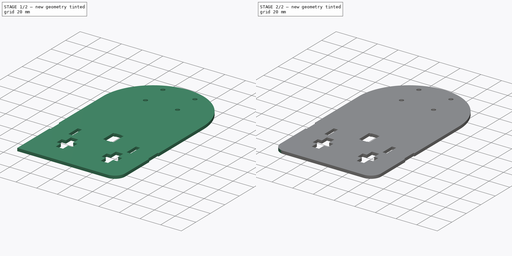
[diagram: build sequence overview — one tinted view per stage of 2, left to right]
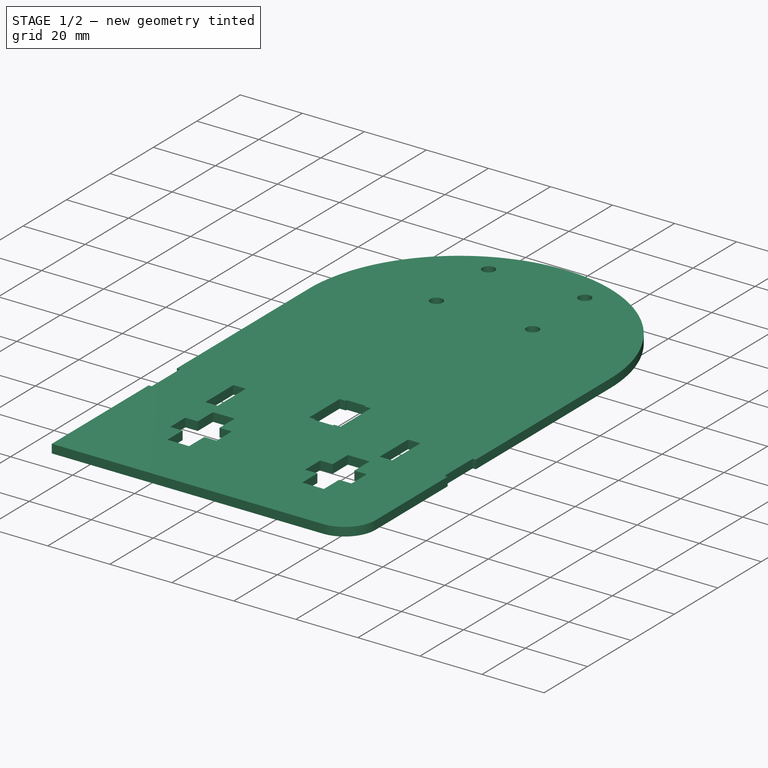
[diagram: stage 1 of 2 — iso view after this stage's code; geometry added in this stage tinted green]
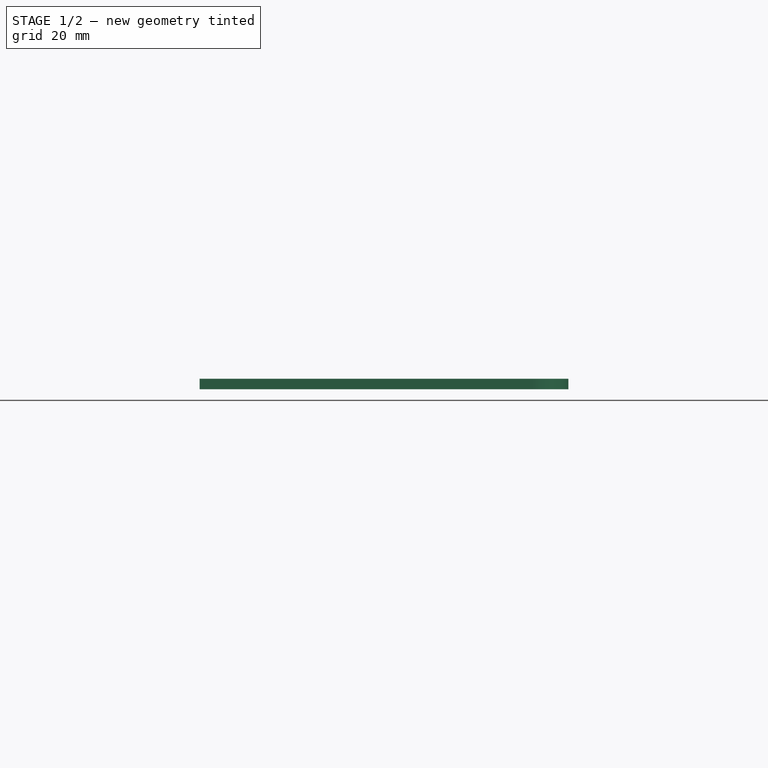
[diagram: stage 1 of 2 — front view after this stage's code; geometry added in this stage tinted green]
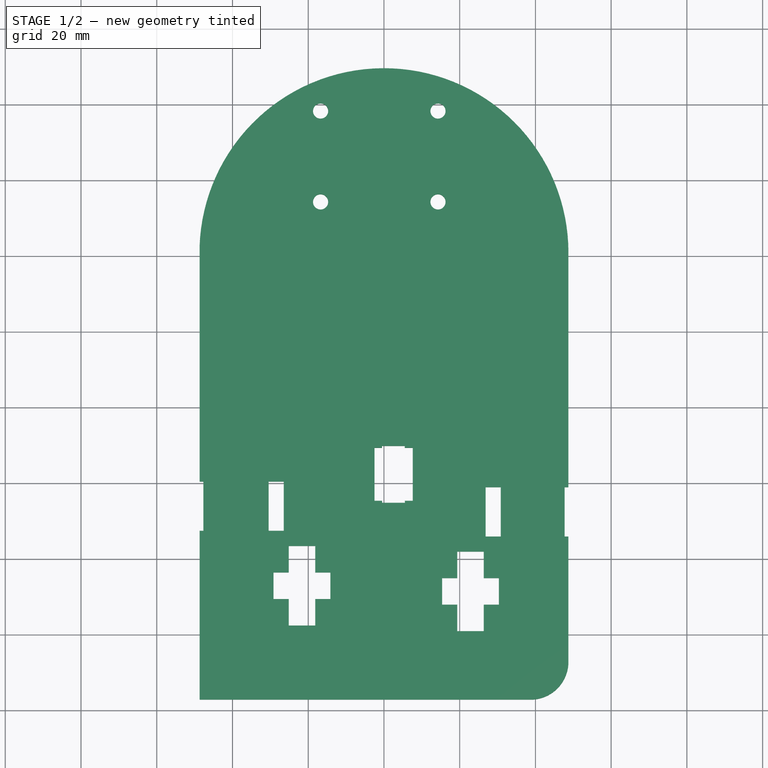
[diagram: stage 1 of 2 — top view after this stage's code; geometry added in this stage tinted green]
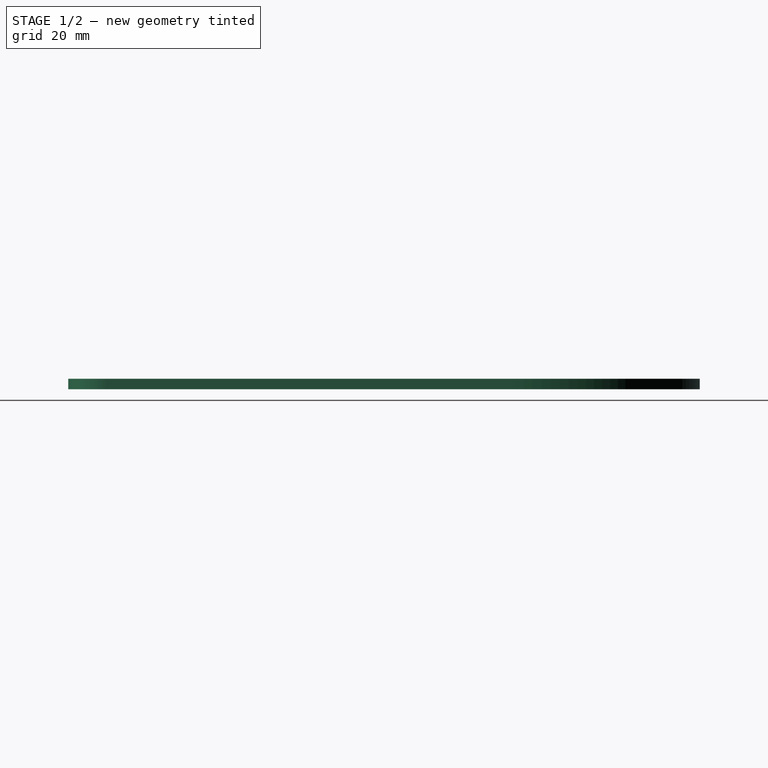
[diagram: stage 1 of 2 — right view after this stage's code; geometry added in this stage tinted green]
FCSTD DOCUMENT  (FreeCAD 0.16R6704 (Git))
Label: placa robot evita
License: All rights reserved
LicenseURL: http://en.wikipedia.org/wiki/All_rights_reserved
objects: Part::Fillet×2, Sketcher::SketchObject×1, PartDesign::Pad×1
note: 5 computed .brp shape members not serialized (recipe doc carries the construction recipe); baked Part::Feature solids carry a one-line shape summary decoded from their .brp

FEATURE [Sketcher::SketchObject] Sketch001
  sketch-geometry (65):
    g0: GeomPoint [constr] X=2.73482e-06 Y=-64.9838 Z=0
    g1: GeomPoint [constr] X=0.000781089 Y=-94.5802 Z=0
    g2: GeomPoint [constr] X=5.17953e-06 Y=-94.5802 Z=0
    g3: LineSegment StartX=48.7183 StartY=-1.05236 StartZ=0 EndX=47.7183 EndY=-1.05236 EndZ=0
    g4: LineSegment StartX=47.7183 StartY=-1.05236 StartZ=0 EndX=47.7183 EndY=-14.0524 EndZ=0
    g5: LineSegment StartX=47.7183 StartY=-14.0524 StartZ=0 EndX=48.7184 EndY=-14.0524 EndZ=0
    g6: LineSegment StartX=48.7184 StartY=-14.0524 StartZ=0 EndX=48.7184 EndY=-57.1495 EndZ=0
    g7: LineSegment StartX=-48.6938 StartY=-12.5628 StartZ=0 EndX=-47.6938 EndY=-12.5628 EndZ=0
    g8: LineSegment StartX=-48.6938 StartY=0.437237 StartZ=0 EndX=-47.6938 EndY=0.437237 EndZ=0
    g9: LineSegment StartX=-47.6938 StartY=0.437237 StartZ=0 EndX=-47.6938 EndY=-12.5628 EndZ=0
    g10: LineSegment StartX=-48.6938 StartY=-57.1495 StartZ=0 EndX=-48.6938 EndY=-12.5628 EndZ=0
    g11: LineSegment StartX=30.8602 StartY=-1.05236 StartZ=0 EndX=26.8602 EndY=-1.05236 EndZ=0
    g12: LineSegment StartX=30.8602 StartY=-1.05236 StartZ=0 EndX=30.8602 EndY=-14.0524 EndZ=0
    g13: LineSegment StartX=26.8602 StartY=-1.05236 StartZ=0 EndX=26.8602 EndY=-14.0524 EndZ=0
    g14: LineSegment StartX=26.8602 StartY=-14.0524 StartZ=0 EndX=30.8602 EndY=-14.0524 EndZ=0
    g15: LineSegment StartX=-30.4541 StartY=0.437237 StartZ=0 EndX=-26.4541 EndY=0.437237 EndZ=0
    g16: LineSegment StartX=-30.4541 StartY=0.437237 StartZ=0 EndX=-30.4541 EndY=-12.5628 EndZ=0
    g17: LineSegment StartX=-26.4541 StartY=0.437237 StartZ=0 EndX=-26.4541 EndY=-12.5628 EndZ=0
    g18: LineSegment StartX=-30.4541 StartY=-12.5628 StartZ=0 EndX=-26.4541 EndY=-12.5628 EndZ=0
    g19: LineSegment StartX=7.59332 StartY=9.36164 StartZ=0 EndX=7.59332 EndY=-4.63836 EndZ=0
    g20: LineSegment StartX=-2.48093 StartY=9.36164 StartZ=0 EndX=-2.48093 EndY=-4.63836 EndZ=0
    g21: LineSegment StartX=-0.515563 StartY=9.86164 StartZ=0 EndX=-0.515563 EndY=9.36164 EndZ=0
    g22: LineSegment StartX=-0.515563 StartY=9.86164 StartZ=0 EndX=5.48444 EndY=9.86164 EndZ=0
    g23: LineSegment StartX=5.48444 StartY=9.86164 StartZ=0 EndX=5.48444 EndY=9.36164 EndZ=0
    g24: LineSegment StartX=5.48444 StartY=9.36164 StartZ=0 EndX=7.59332 EndY=9.36164 EndZ=0
    g25: LineSegment StartX=-2.48093 StartY=9.36164 StartZ=0 EndX=-0.515563 EndY=9.36164 EndZ=0
    g26: LineSegment StartX=26.3602 StartY=-18.0524 StartZ=0 EndX=19.3602 EndY=-18.0524 EndZ=0
    g27: LineSegment StartX=19.3602 StartY=-18.0524 StartZ=0 EndX=19.3602 EndY=-25.0524 EndZ=0
    g28: LineSegment StartX=19.3602 StartY=-25.0524 StartZ=0 EndX=15.3602 EndY=-25.0524 EndZ=0
    g29: LineSegment StartX=15.3602 StartY=-25.0524 StartZ=0 EndX=15.3602 EndY=-32.0524 EndZ=0
    g30: LineSegment StartX=15.3602 StartY=-32.0524 StartZ=0 EndX=19.3602 EndY=-32.0524 EndZ=0
    g31: LineSegment StartX=19.3602 StartY=-32.0524 StartZ=0 EndX=19.3602 EndY=-39.0524 EndZ=0
    g32: LineSegment StartX=19.3602 StartY=-39.0524 StartZ=0 EndX=26.3602 EndY=-39.0524 EndZ=0
    g33: LineSegment StartX=26.3602 StartY=-39.0524 StartZ=0 EndX=26.3602 EndY=-32.0524 EndZ=0
    g34: LineSegment StartX=26.3602 StartY=-32.0524 StartZ=0 EndX=30.3602 EndY=-32.0524 EndZ=0
    g35: LineSegment StartX=30.3602 StartY=-32.0524 StartZ=0 EndX=30.3602 EndY=-25.0524 EndZ=0
    g36: LineSegment StartX=30.3602 StartY=-25.0524 StartZ=0 EndX=26.3602 EndY=-25.0524 EndZ=0
    g37: LineSegment StartX=26.3602 StartY=-18.0524 StartZ=0 EndX=26.3602 EndY=-25.0524 EndZ=0
    g38: LineSegment StartX=-0.480931 StartY=-5.13836 StartZ=0 EndX=-0.480931 EndY=-4.63836 EndZ=0
    g39: LineSegment StartX=-0.480931 StartY=-5.13836 StartZ=0 EndX=5.51907 EndY=-5.13836 EndZ=0
    g40: LineSegment StartX=5.51907 StartY=-5.13836 StartZ=0 EndX=5.51907 EndY=-4.63836 EndZ=0
    g41: LineSegment StartX=-0.480931 StartY=-4.63836 StartZ=0 EndX=-2.48093 EndY=-4.63836 EndZ=0
    g42: LineSegment StartX=5.51907 StartY=-4.63836 StartZ=0 EndX=7.59332 EndY=-4.63836 EndZ=0
    g43: LineSegment StartX=-25.1533 StartY=-16.5628 StartZ=0 EndX=-25.1533 EndY=-23.5628 EndZ=0
    g44: LineSegment StartX=-25.1533 StartY=-23.5628 StartZ=0 EndX=-29.1533 EndY=-23.5628 EndZ=0
    g45: LineSegment StartX=-29.1533 StartY=-23.5628 StartZ=0 EndX=-29.1533 EndY=-30.5628 EndZ=0
    g46: LineSegment StartX=-29.1533 StartY=-30.5628 StartZ=0 EndX=-25.1533 EndY=-30.5628 EndZ=0
    g47: LineSegment StartX=-25.1533 StartY=-30.5628 StartZ=0 EndX=-25.1533 EndY=-37.5628 EndZ=0
    g48: LineSegment StartX=-25.1533 StartY=-37.5628 StartZ=0 EndX=-18.1533 EndY=-37.5628 EndZ=0
    g49: LineSegment StartX=-18.1533 StartY=-37.5628 StartZ=0 EndX=-18.1533 EndY=-30.5628 EndZ=0
    g50: LineSegment StartX=-18.1533 StartY=-30.5628 StartZ=0 EndX=-14.1533 EndY=-30.5628 EndZ=0
    g51: LineSegment StartX=-14.1533 StartY=-30.5628 StartZ=0 EndX=-14.1533 EndY=-23.5628 EndZ=0
    g52: LineSegment StartX=-14.1533 StartY=-23.5628 StartZ=0 EndX=-18.1533 EndY=-23.5628 EndZ=0
    g53: LineSegment StartX=-18.1533 StartY=-23.5628 StartZ=0 EndX=-18.1533 EndY=-16.5628 EndZ=0
    g54: LineSegment StartX=-25.1533 StartY=-16.5628 StartZ=0 EndX=-18.1533 EndY=-16.5628 EndZ=0
    g55: Circle CenterX=-16.732 CenterY=74.3101 CenterZ=0 NormalX=0 NormalY=0 NormalZ=1 Radius=2
    g56: Circle CenterX=14.268 CenterY=74.3101 CenterZ=0 NormalX=0 NormalY=0 NormalZ=1 Radius=2
    g57: Circle CenterX=-16.732 CenterY=98.3101 CenterZ=0 NormalX=0 NormalY=0 NormalZ=1 Radius=2
    g58: Circle CenterX=14.268 CenterY=98.3101 CenterZ=0 NormalX=0 NormalY=0 NormalZ=1 Radius=2
    g59: GeomPoint [constr] X=0 Y=12.0048 Z=0
    g60: GeomPoint [constr] X=0 Y=32.0116 Z=0
    g61: LineSegment StartX=-48.6938 StartY=-57.1495 StartZ=0 EndX=48.7184 EndY=-57.1495 EndZ=0
    g62: LineSegment StartX=-48.6938 StartY=0.437237 StartZ=0 EndX=-48.6938 EndY=62.4595 EndZ=0
    g63: LineSegment StartX=48.7183 StartY=-1.05236 StartZ=0 EndX=48.7183 EndY=60.7275 EndZ=0
    g64: ArcOfCircle CenterX=0 CenterY=60.9043 CenterZ=0 NormalX=0 NormalY=0 NormalZ=1 Radius=48.7187 StartAngle=6.27955 EndAngle=9.39285
  constraints (162):
    c: Distance(g5,g3) = 13
    c: Horizontal(g3)
    c: Distance(g3,g3) = 1
    c: Coincident(g4,g3)
    c: Vertical(g4)
    c: Distance(g4) = 13
    c: Coincident(g5,g4)
    c: Horizontal(g5)
    c: Coincident(g6,g5)
    c: Vertical(g6)
    c: Distance(g8,g7) = 13
    c: Horizontal(g7)
    c: Distance(g7,g7) = 1
    c: Horizontal(g8)
    c: Distance(g8,g8) = 1
    c: Coincident(g9,g8)
    c: Coincident(g9,g7)
    c: Vertical(g9)
    c: Vertical(g10)
    c: Coincident(g10,g7)
    c: Horizontal(g11)
    c: Distance(g11) = 4
    c: Vertical(g12)
    c: Coincident(g13,g11)
    c: Vertical(g13)
    c: Distance(g13) = 13
    c: Distance(g12) = 13
    c: Coincident(g14,g13)
    c: Coincident(g14,g12)
    c: Horizontal(g14)
    c: Horizontal(g15)
    c: Distance(g14) = 4
    c: Distance(g15) = 4
    c: Vertical(g16)
    c: Distance(g16) = 13
    c: Coincident(g17,g15)
    c: Vertical(g17)
    c: Distance(g17) = 13
    c: Coincident(g18,g16)
    c: Coincident(g18,g17)
    c: Horizontal(g18)
    c: Distance(g18) = 4
    c: Vertical(g19)
    c: Vertical(g20)
    c: Vertical(g21)
    c: Horizontal(g22)
    c: Distance(g22) = 6
    c: Coincident(g23,g22)
    c: Vertical(g23)
    c: Coincident(g24,g23)
    c: Coincident(g24,g19)
    c: Horizontal(g24)
    c: Coincident(g25,g20)
    c: Coincident(g25,g21)
    c: Horizontal(g25)
    c: Horizontal(g26)
    c: Distance(g26) = 7
    c: Coincident(g27,g26)
    c: Vertical(g27)
    c: Distance(g27) = 7
    c: Coincident(g28,g27)
    c: Horizontal(g28)
    c: Distance(g28) = 4
    c: Coincident(g29,g28)
    c: Vertical(g29)
    c: Distance(g29) = 7
    c: Coincident(g30,g29)
    c: Horizontal(g30)
    c: Distance(g30) = 4
    c: Coincident(g31,g30)
    c: Vertical(g31)
    c: Distance(g31) = 7
    c: Coincident(g32,g31)
    c: Horizontal(g32)
    c: Distance(g32) = 7
    c: Coincident(g33,g32)
    c: Vertical(g33)
    c: Distance(g33) = 7
    c: Coincident(g34,g33)
    c: Horizontal(g34)
    c: Distance(g34) = 4
    c: Coincident(g35,g34)
    c: Vertical(g35)
    c: Distance(g35) = 7
    c: Coincident(g36,g35)
    c: Horizontal(g36)
    c: Distance(g36) = 4
    c: Coincident(g37,g36)
    c: Vertical(g37)
    c: Vertical(g38)
    c: Horizontal(g39)
    c: Distance(g39) = 6
    c: Coincident(g40,g39)
    c: Vertical(g40)
    c: Coincident(g41,g38)
    c: Coincident(g41,g20)
    c: Horizontal(g41)
    c: Coincident(g42,g40)
    c: Coincident(g42,g19)
    c: Horizontal(g42)
    c: Vertical(g43)
    c: Distance(g43) = 7
    c: Coincident(g44,g43)
    c: Horizontal(g44)
    c: Distance(g44) = 4
    c: Coincident(g45,g44)
    c: Vertical(g45)
    c: Distance(g45) = 7
    c: Coincident(g46,g45)
    c: Horizontal(g46)
    c: Distance(g46) = 4
    c: Coincident(g47,g46)
    c: Vertical(g47)
    c: Distance(g47) = 7
    c: Coincident(g48,g47)
    c: Horizontal(g48)
    c: Distance(g48) = 7
    c: Coincident(g49,g48)
    c: Vertical(g49)
    c: Distance(g49) = 7
    c: Coincident(g50,g49)
    c: Horizontal(g50)
    c: Distance(g50) = 4
    c: Coincident(g51,g50)
    c: Vertical(g51)
    c: Distance(g51) = 7
    c: Coincident(g52,g51)
    c: Horizontal(g52)
    c: Distance(g52) = 4
    c: Coincident(g53,g52)
    c: Vertical(g53)
    c: Distance(g53) = 7
    c: Coincident(g54,g53)
    c: Horizontal(g54)
    c: Distance(g54) = 7
    c: Distance(g38) = 0.5
    c: Distance(g40) = 0.5
    c: Distance(g21) = 0.5
    c: Distance(g23) = 0.5
    c: Distance(g20) = 14
    c: Distance(g19) = 14
    c: Coincident(g21,g22)
    c: Radius(g58) = 2
    c: DistanceY(g55,g57) = 24
    c: DistanceY(g56,g58) = 24
    c: DistanceY(g8,g15) = 0
    c: DistanceY(g3,g11) = 0
    c: DistanceY(g43,g17) = 4
    c: DistanceY(g26,g13) = 4
    c: Coincident(g37,g26)
    c: PointOnObject(g59,g-2)
    c: PointOnObject(g60,g-2)
    c: Horizontal(g61)
    c: Coincident(g62,g8)
    c: Vertical(g62)
    c: Coincident(g63,g3)
    c: Vertical(g63)
    c: Coincident(g6,g61)
    c: Coincident(g61,g10)
    c: PointOnObject(g64,g-2)
    c: Coincident(g64,g62)
    c: Coincident(g64,g63)
FEATURE [PartDesign::Pad] Pad
  Length = 2.8
  Length2 = 100
  Sketch = -> Sketch001
  Type = 0
FEATURE [Part::Fillet] Fillet
  Base = -> Pad
  Edges = 1 edges r=10: [Edge11]
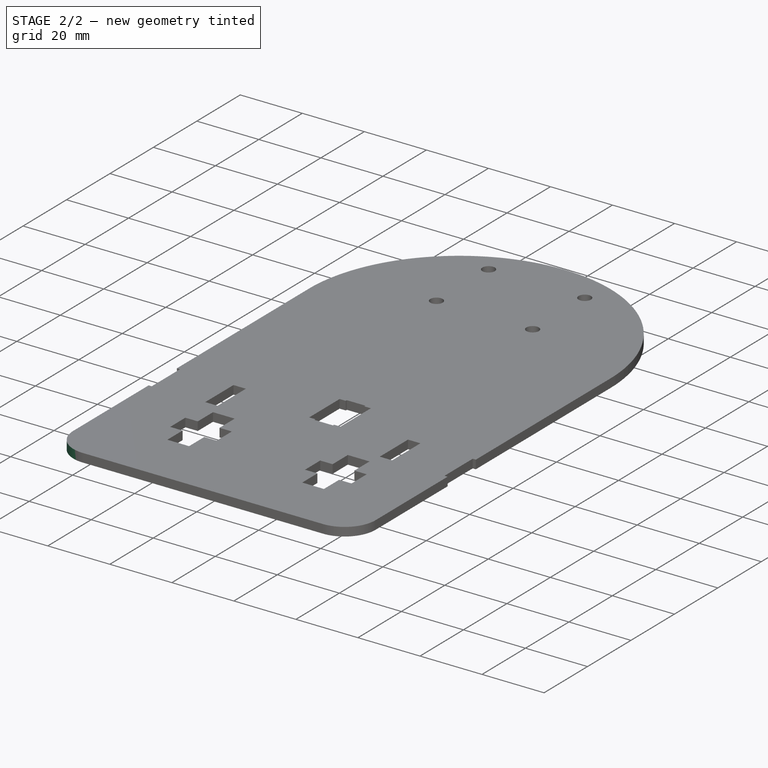
[diagram: stage 2 of 2 — iso view after this stage's code; geometry added in this stage tinted green]
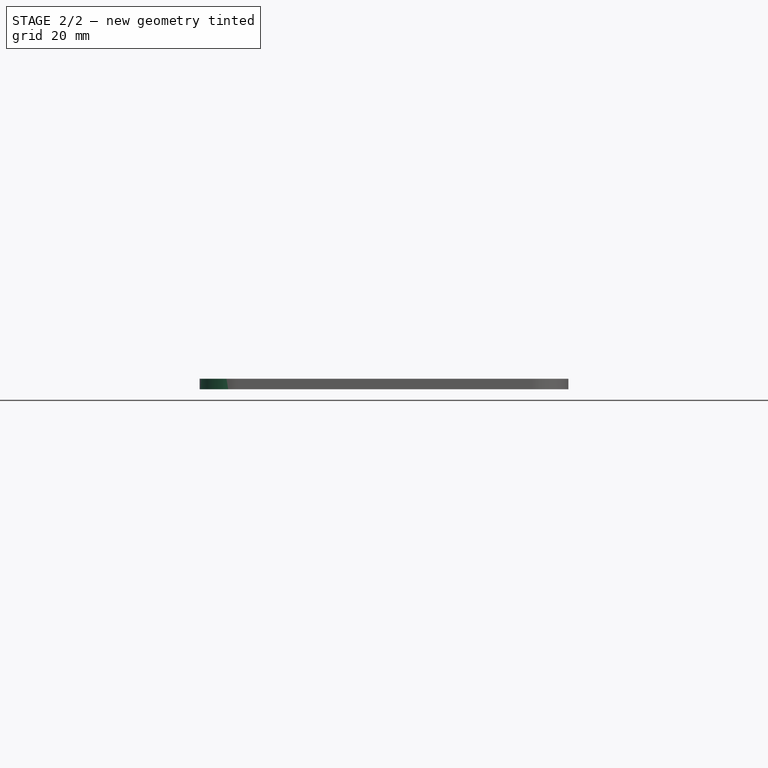
[diagram: stage 2 of 2 — front view after this stage's code; geometry added in this stage tinted green]
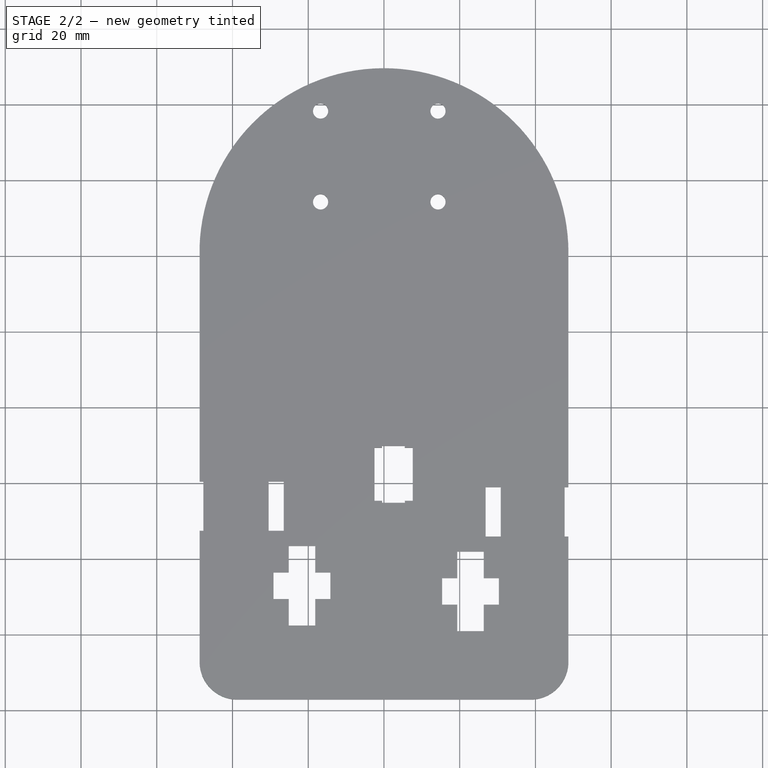
[diagram: stage 2 of 2 — top view after this stage's code; geometry added in this stage tinted green]
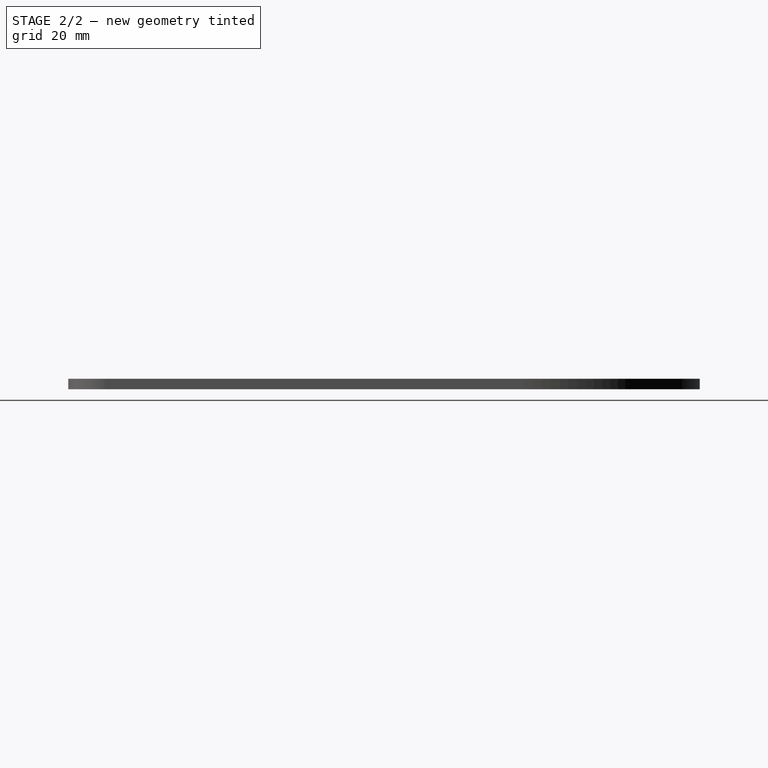
[diagram: stage 2 of 2 — right view after this stage's code; geometry added in this stage tinted green]
FEATURE [Part::Fillet] Fillet001
  Base = -> Fillet
  Edges = 1 edges r=10: [Edge127]
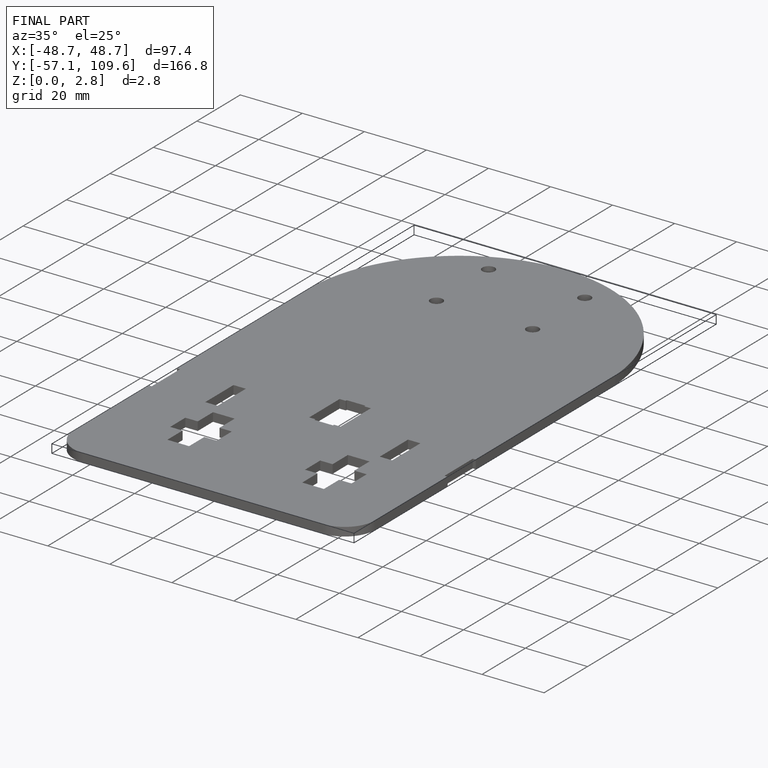
[diagram: finished part — iso view with bounding-box wireframe]
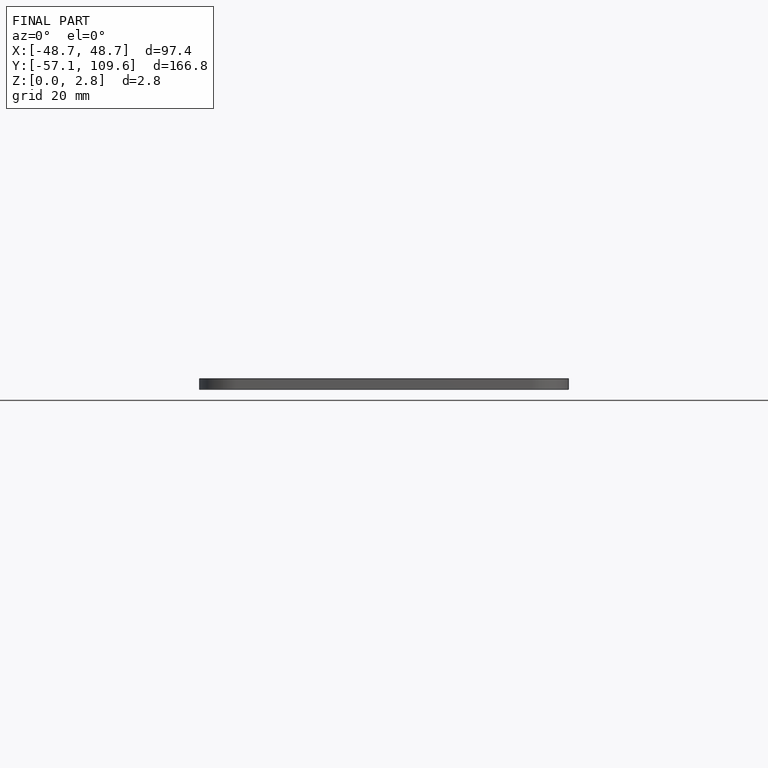
[diagram: finished part — front view with bounding-box wireframe]
